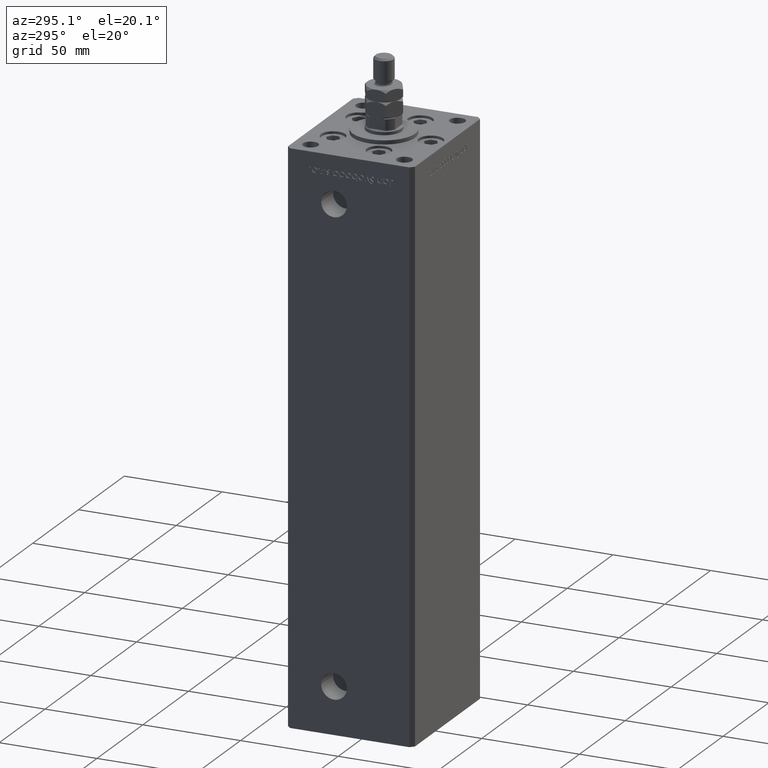
[diagram: clean part render]
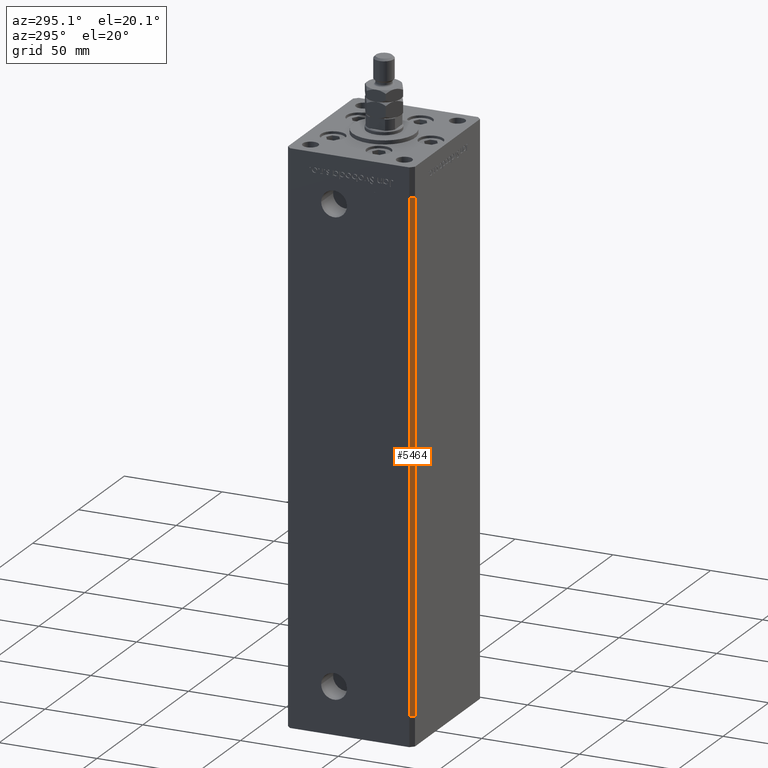
[diagram: same view with one face highlighted and labeled with its STEP entity id]
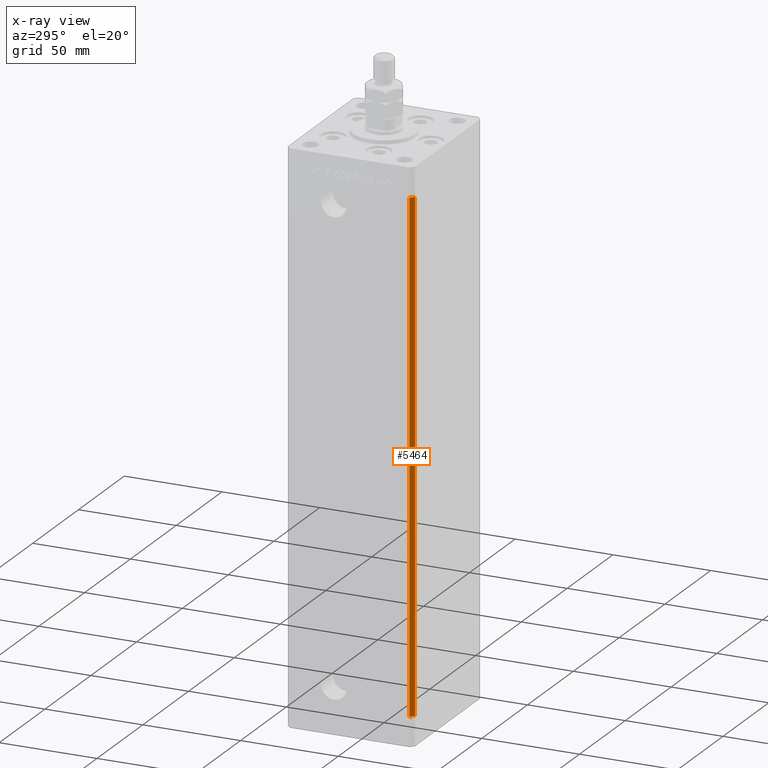
[diagram: x-ray of the same camera — body ghosted, the highlighted face saturated]
A machine part, auxiliary view. The second image highlights one B-rep face of the part: STEP entity #5464.
The next image is the same camera in x-ray: the body ghosted, the highlighted face saturated — about 0% of this face is hidden behind the body in this view.
In plain terms, the highlighted planar face has unit normal (0.7071, 0.7071, 0).
Its self-contained STEP definition (entity closure, byte-faithful):
#390 = DIRECTION ( 'NONE',  ( -0.000000000000000000, -0.000000000000000000, -1.000000000000000000 ) ) ;
#585 = EDGE_CURVE ( 'NONE', #13983, #32842, #46138, .T. ) ;
#830 = VECTOR ( 'NONE', #12039, 1000.000000000000114 ) ;
#3042 = VECTOR ( 'NONE', #39915, 1000.000000000000000 ) ;
#5305 = EDGE_CURVE ( 'NONE', #32842, #8644, #28198, .T. ) ;
#5464 = ADVANCED_FACE ( 'NONE', ( #29542 ), #46122, .F. ) ;
#8152 = CARTESIAN_POINT ( 'NONE',  ( -35.49999999999999289, -32.50000000000000000, 0.000000000000000000 ) ) ;
#8173 = VERTEX_POINT ( 'NONE', #28725 ) ;
#8644 = VERTEX_POINT ( 'NONE', #8152 ) ;
#8909 = CARTESIAN_POINT ( 'NONE',  ( -37.49999999999999289, -30.50000000000000000, 256.0000000000000000 ) ) ;
#12039 = DIRECTION ( 'NONE',  ( 0.7071067811865474617, -0.7071067811865474617, 0.000000000000000000 ) ) ;
#13983 = VERTEX_POINT ( 'NONE', #15818 ) ;
#15818 = CARTESIAN_POINT ( 'NONE',  ( -37.49999999999999289, -30.50000000000000000, 256.0000000000000000 ) ) ;
#16421 = CARTESIAN_POINT ( 'NONE',  ( -37.49999999999999289, -30.50000000000000000, 256.0000000000000000 ) ) ;
#17351 = CARTESIAN_POINT ( 'NONE',  ( -37.49999999999999289, -30.50000000000000000, 256.0000000000000000 ) ) ;
#22585 = EDGE_CURVE ( 'NONE', #8173, #8644, #53326, .T. ) ;
#23342 = EDGE_LOOP ( 'NONE', ( #28679, #41244, #53475, #29883 ) ) ;
#24565 = LINE ( 'NONE', #16421, #35981 ) ;
#24713 = AXIS2_PLACEMENT_3D ( 'NONE', #8909, #25469, #42041 ) ;
#24794 = CARTESIAN_POINT ( 'NONE',  ( -37.49999999999999289, -30.50000000000000000, 0.000000000000000000 ) ) ;
#25469 = DIRECTION ( 'NONE',  ( 0.7071067811865475727, 0.7071067811865475727, -0.000000000000000000 ) ) ;
#28198 = LINE ( 'NONE', #45048, #3042 ) ;
#28679 = ORIENTED_EDGE ( 'NONE', *, *, #22585, .T. ) ;
#28725 = CARTESIAN_POINT ( 'NONE',  ( -37.49999999999999289, -30.50000000000000000, 0.000000000000000000 ) ) ;
#29542 = FACE_OUTER_BOUND ( 'NONE', #23342, .T. ) ;
#29883 = ORIENTED_EDGE ( 'NONE', *, *, #32969, .T. ) ;
#32842 = VERTEX_POINT ( 'NONE', #48748 ) ;
#32969 = EDGE_CURVE ( 'NONE', #13983, #8173, #24565, .T. ) ;
#35981 = VECTOR ( 'NONE', #390, 1000.000000000000000 ) ;
#38263 = DIRECTION ( 'NONE',  ( 0.7071067811865474617, -0.7071067811865474617, 0.000000000000000000 ) ) ;
#39915 = DIRECTION ( 'NONE',  ( -0.000000000000000000, -0.000000000000000000, -1.000000000000000000 ) ) ;
#41244 = ORIENTED_EDGE ( 'NONE', *, *, #5305, .F. ) ;
#42041 = DIRECTION ( 'NONE',  ( -0.7071067811865474617, 0.7071067811865474617, 0.000000000000000000 ) ) ;
#45048 = CARTESIAN_POINT ( 'NONE',  ( -35.49999999999999289, -32.50000000000000000, 256.0000000000000000 ) ) ;
#45391 = VECTOR ( 'NONE', #38263, 1000.000000000000114 ) ;
#46122 = PLANE ( 'NONE',  #24713 ) ;
#46138 = LINE ( 'NONE', #17351, #45391 ) ;
#48748 = CARTESIAN_POINT ( 'NONE',  ( -35.49999999999999289, -32.50000000000000000, 256.0000000000000000 ) ) ;
#53326 = LINE ( 'NONE', #24794, #830 ) ;
#53475 = ORIENTED_EDGE ( 'NONE', *, *, #585, .F. ) ;